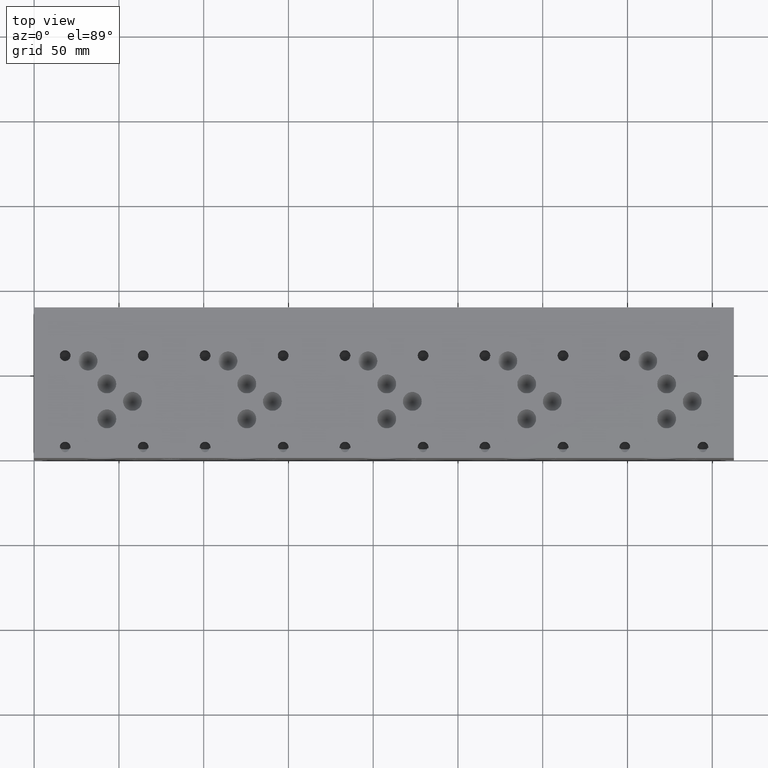
[diagram: clean part render]
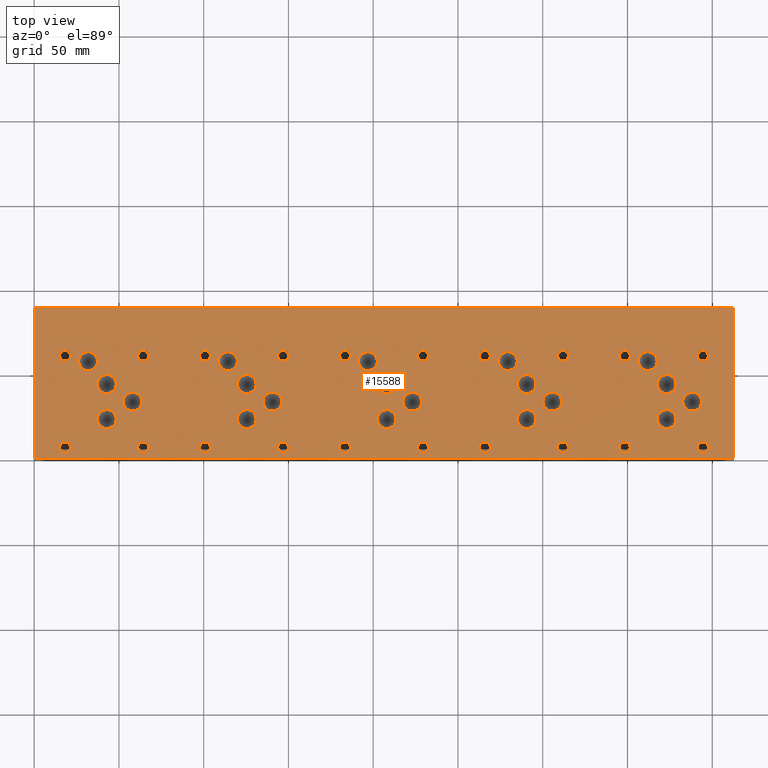
[diagram: same view with one face highlighted and labeled with its STEP entity id]
A machine part, top view. The second image highlights one B-rep face of the part: STEP entity #15588.
In plain terms, the highlighted planar face has unit normal (0, 0, 1).
Its self-contained STEP definition (entity closure, byte-faithful):
#309=CIRCLE('',#16221,3.175);
#310=CIRCLE('',#16222,3.175);
#316=CIRCLE('',#16232,3.175);
#317=CIRCLE('',#16233,3.175);
#323=CIRCLE('',#16243,3.175);
#324=CIRCLE('',#16244,3.175);
#330=CIRCLE('',#16254,3.175);
#331=CIRCLE('',#16255,3.175);
#337=CIRCLE('',#16265,3.175);
#338=CIRCLE('',#16266,3.175);
#344=CIRCLE('',#16276,3.175);
#345=CIRCLE('',#16277,3.175);
#351=CIRCLE('',#16287,3.175);
#352=CIRCLE('',#16288,3.175);
#358=CIRCLE('',#16298,3.175);
#359=CIRCLE('',#16299,3.175);
#365=CIRCLE('',#16309,3.175);
#366=CIRCLE('',#16310,3.175);
#372=CIRCLE('',#16320,3.175);
#373=CIRCLE('',#16321,3.175);
#379=CIRCLE('',#16331,3.175);
#380=CIRCLE('',#16332,3.175);
#386=CIRCLE('',#16342,3.175);
#387=CIRCLE('',#16343,3.175);
#393=CIRCLE('',#16353,3.175);
#394=CIRCLE('',#16354,3.175);
#400=CIRCLE('',#16364,3.175);
#401=CIRCLE('',#16365,3.175);
#407=CIRCLE('',#16375,3.175);
#408=CIRCLE('',#16376,3.175);
#414=CIRCLE('',#16386,3.175);
#415=CIRCLE('',#16387,3.175);
#418=CIRCLE('',#16393,5.5626);
#419=CIRCLE('',#16394,5.5626);
#422=CIRCLE('',#16399,5.5626);
#423=CIRCLE('',#16400,5.5626);
#426=CIRCLE('',#16405,5.5626);
#427=CIRCLE('',#16406,5.5626);
#430=CIRCLE('',#16411,5.5626);
#431=CIRCLE('',#16412,5.5626);
#434=CIRCLE('',#16417,5.5626);
#435=CIRCLE('',#16418,5.5626);
#438=CIRCLE('',#16423,5.5626);
#439=CIRCLE('',#16424,5.5626);
#442=CIRCLE('',#16429,5.5626);
#443=CIRCLE('',#16430,5.5626);
#446=CIRCLE('',#16435,5.5626);
#447=CIRCLE('',#16436,5.5626);
#450=CIRCLE('',#16441,5.5626);
#451=CIRCLE('',#16442,5.5626);
#454=CIRCLE('',#16447,5.5626);
#455=CIRCLE('',#16448,5.5626);
#458=CIRCLE('',#16453,5.5626);
#459=CIRCLE('',#16454,5.5626);
#462=CIRCLE('',#16459,5.5626);
#463=CIRCLE('',#16460,5.5626);
#466=CIRCLE('',#16465,5.5626);
#467=CIRCLE('',#16466,5.5626);
#470=CIRCLE('',#16471,5.5626);
#471=CIRCLE('',#16472,5.5626);
#474=CIRCLE('',#16477,5.5626);
#475=CIRCLE('',#16478,5.5626);
#478=CIRCLE('',#16483,5.5626);
#479=CIRCLE('',#16484,5.5626);
#482=CIRCLE('',#16489,5.5626);
#483=CIRCLE('',#16490,5.5626);
#486=CIRCLE('',#16495,5.5626);
#487=CIRCLE('',#16496,5.5626);
#490=CIRCLE('',#16501,5.5626);
#491=CIRCLE('',#16502,5.5626);
#494=CIRCLE('',#16507,5.5626);
#495=CIRCLE('',#16508,5.5626);
#501=CIRCLE('',#16517,3.175);
#502=CIRCLE('',#16518,3.175);
#508=CIRCLE('',#16528,3.175);
#509=CIRCLE('',#16529,3.175);
#515=CIRCLE('',#16539,3.175);
#516=CIRCLE('',#16540,3.175);
#522=CIRCLE('',#16550,3.175);
#523=CIRCLE('',#16551,3.175);
#642=FACE_BOUND('',#3008,.T.);
#643=FACE_BOUND('',#3009,.T.);
#644=FACE_BOUND('',#3010,.T.);
#645=FACE_BOUND('',#3011,.T.);
#646=FACE_BOUND('',#3012,.T.);
#647=FACE_BOUND('',#3013,.T.);
#648=FACE_BOUND('',#3014,.T.);
#649=FACE_BOUND('',#3015,.T.);
#650=FACE_BOUND('',#3016,.T.);
#651=FACE_BOUND('',#3017,.T.);
#652=FACE_BOUND('',#3018,.T.);
#653=FACE_BOUND('',#3019,.T.);
#654=FACE_BOUND('',#3020,.T.);
#655=FACE_BOUND('',#3021,.T.);
#656=FACE_BOUND('',#3022,.T.);
#657=FACE_BOUND('',#3023,.T.);
#658=FACE_BOUND('',#3024,.T.);
#659=FACE_BOUND('',#3025,.T.);
#660=FACE_BOUND('',#3026,.T.);
#661=FACE_BOUND('',#3027,.T.);
#662=FACE_BOUND('',#3028,.T.);
#663=FACE_BOUND('',#3029,.T.);
#664=FACE_BOUND('',#3030,.T.);
#665=FACE_BOUND('',#3031,.T.);
#666=FACE_BOUND('',#3032,.T.);
#667=FACE_BOUND('',#3033,.T.);
#668=FACE_BOUND('',#3034,.T.);
#669=FACE_BOUND('',#3035,.T.);
#670=FACE_BOUND('',#3036,.T.);
#671=FACE_BOUND('',#3037,.T.);
#672=FACE_BOUND('',#3038,.T.);
#673=FACE_BOUND('',#3039,.T.);
#674=FACE_BOUND('',#3040,.T.);
#675=FACE_BOUND('',#3041,.T.);
#676=FACE_BOUND('',#3042,.T.);
#677=FACE_BOUND('',#3043,.T.);
#678=FACE_BOUND('',#3044,.T.);
#679=FACE_BOUND('',#3045,.T.);
#680=FACE_BOUND('',#3046,.T.);
#681=FACE_BOUND('',#3047,.T.);
#2086=FACE_OUTER_BOUND('',#3007,.T.);
#3007=EDGE_LOOP('',(#13678,#13679,#13680,#13681));
#3008=EDGE_LOOP('',(#13682,#13683));
#3009=EDGE_LOOP('',(#13684,#13685));
#3010=EDGE_LOOP('',(#13686,#13687));
#3011=EDGE_LOOP('',(#13688,#13689));
#3012=EDGE_LOOP('',(#13690,#13691));
#3013=EDGE_LOOP('',(#13692,#13693));
#3014=EDGE_LOOP('',(#13694,#13695));
#3015=EDGE_LOOP('',(#13696,#13697));
#3016=EDGE_LOOP('',(#13698,#13699));
#3017=EDGE_LOOP('',(#13700,#13701));
#3018=EDGE_LOOP('',(#13702,#13703));
#3019=EDGE_LOOP('',(#13704,#13705));
#3020=EDGE_LOOP('',(#13706,#13707));
#3021=EDGE_LOOP('',(#13708,#13709));
#3022=EDGE_LOOP('',(#13710,#13711));
#3023=EDGE_LOOP('',(#13712,#13713));
#3024=EDGE_LOOP('',(#13714,#13715));
#3025=EDGE_LOOP('',(#13716,#13717));
#3026=EDGE_LOOP('',(#13718,#13719));
#3027=EDGE_LOOP('',(#13720,#13721));
#3028=EDGE_LOOP('',(#13722,#13723));
#3029=EDGE_LOOP('',(#13724,#13725));
#3030=EDGE_LOOP('',(#13726,#13727));
#3031=EDGE_LOOP('',(#13728,#13729));
#3032=EDGE_LOOP('',(#13730,#13731));
#3033=EDGE_LOOP('',(#13732,#13733));
#3034=EDGE_LOOP('',(#13734,#13735));
#3035=EDGE_LOOP('',(#13736,#13737));
#3036=EDGE_LOOP('',(#13738,#13739));
#3037=EDGE_LOOP('',(#13740,#13741));
#3038=EDGE_LOOP('',(#13742,#13743));
#3039=EDGE_LOOP('',(#13744,#13745));
#3040=EDGE_LOOP('',(#13746,#13747));
#3041=EDGE_LOOP('',(#13748,#13749));
#3042=EDGE_LOOP('',(#13750,#13751));
#3043=EDGE_LOOP('',(#13752,#13753));
#3044=EDGE_LOOP('',(#13754,#13755));
#3045=EDGE_LOOP('',(#13756,#13757));
#3046=EDGE_LOOP('',(#13758,#13759));
#3047=EDGE_LOOP('',(#13760,#13761));
#3107=LINE('',#20119,#4497);
#3167=LINE('',#20394,#4557);
#3449=LINE('',#22562,#4839);
#4438=LINE('',#26920,#5828);
#4497=VECTOR('',#16657,10.);
#4557=VECTOR('',#16771,10.);
#4839=VECTOR('',#17213,10.);
#5828=VECTOR('',#19852,10.);
#5879=VERTEX_POINT('',#20116);
#5880=VERTEX_POINT('',#20118);
#5939=VERTEX_POINT('',#20391);
#5940=VERTEX_POINT('',#20393);
#7077=VERTEX_POINT('',#26232);
#7078=VERTEX_POINT('',#26233);
#7085=VERTEX_POINT('',#26254);
#7086=VERTEX_POINT('',#26255);
#7093=VERTEX_POINT('',#26276);
#7094=VERTEX_POINT('',#26277);
#7101=VERTEX_POINT('',#26298);
#7102=VERTEX_POINT('',#26299);
#7109=VERTEX_POINT('',#26320);
#7110=VERTEX_POINT('',#26321);
#7117=VERTEX_POINT('',#26342);
#7118=VERTEX_POINT('',#26343);
#7125=VERTEX_POINT('',#26364);
#7126=VERTEX_POINT('',#26365);
#7133=VERTEX_POINT('',#26386);
#7134=VERTEX_POINT('',#26387);
#7141=VERTEX_POINT('',#26408);
#7142=VERTEX_POINT('',#26409);
#7149=VERTEX_POINT('',#26430);
#7150=VERTEX_POINT('',#26431);
#7157=VERTEX_POINT('',#26452);
#7158=VERTEX_POINT('',#26453);
#7165=VERTEX_POINT('',#26474);
#7166=VERTEX_POINT('',#26475);
#7173=VERTEX_POINT('',#26496);
#7174=VERTEX_POINT('',#26497);
#7181=VERTEX_POINT('',#26518);
#7182=VERTEX_POINT('',#26519);
#7189=VERTEX_POINT('',#26540);
#7190=VERTEX_POINT('',#26541);
#7197=VERTEX_POINT('',#26562);
#7198=VERTEX_POINT('',#26563);
#7202=VERTEX_POINT('',#26577);
#7203=VERTEX_POINT('',#26578);
#7207=VERTEX_POINT('',#26590);
#7208=VERTEX_POINT('',#26591);
#7212=VERTEX_POINT('',#26603);
#7213=VERTEX_POINT('',#26604);
#7217=VERTEX_POINT('',#26616);
#7218=VERTEX_POINT('',#26617);
#7222=VERTEX_POINT('',#26629);
#7223=VERTEX_POINT('',#26630);
#7227=VERTEX_POINT('',#26642);
#7228=VERTEX_POINT('',#26643);
#7232=VERTEX_POINT('',#26655);
#7233=VERTEX_POINT('',#26656);
#7237=VERTEX_POINT('',#26668);
#7238=VERTEX_POINT('',#26669);
#7242=VERTEX_POINT('',#26681);
#7243=VERTEX_POINT('',#26682);
#7247=VERTEX_POINT('',#26694);
#7248=VERTEX_POINT('',#26695);
#7252=VERTEX_POINT('',#26707);
#7253=VERTEX_POINT('',#26708);
#7257=VERTEX_POINT('',#26720);
#7258=VERTEX_POINT('',#26721);
#7262=VERTEX_POINT('',#26733);
#7263=VERTEX_POINT('',#26734);
#7267=VERTEX_POINT('',#26746);
#7268=VERTEX_POINT('',#26747);
#7272=VERTEX_POINT('',#26759);
#7273=VERTEX_POINT('',#26760);
#7277=VERTEX_POINT('',#26772);
#7278=VERTEX_POINT('',#26773);
#7282=VERTEX_POINT('',#26785);
#7283=VERTEX_POINT('',#26786);
#7287=VERTEX_POINT('',#26798);
#7288=VERTEX_POINT('',#26799);
#7292=VERTEX_POINT('',#26811);
#7293=VERTEX_POINT('',#26812);
#7297=VERTEX_POINT('',#26824);
#7298=VERTEX_POINT('',#26825);
#7305=VERTEX_POINT('',#26844);
#7306=VERTEX_POINT('',#26845);
#7313=VERTEX_POINT('',#26866);
#7314=VERTEX_POINT('',#26867);
#7321=VERTEX_POINT('',#26888);
#7322=VERTEX_POINT('',#26889);
#7329=VERTEX_POINT('',#26910);
#7330=VERTEX_POINT('',#26911);
#7405=EDGE_CURVE('',#5880,#5879,#3107,.T.);
#7489=EDGE_CURVE('',#5940,#5939,#3167,.T.);
#7965=EDGE_CURVE('',#5939,#5880,#3449,.T.);
#9160=EDGE_CURVE('',#7077,#7078,#309,.T.);
#9161=EDGE_CURVE('',#7078,#7077,#310,.T.);
#9170=EDGE_CURVE('',#7085,#7086,#316,.T.);
#9171=EDGE_CURVE('',#7086,#7085,#317,.T.);
#9180=EDGE_CURVE('',#7093,#7094,#323,.T.);
#9181=EDGE_CURVE('',#7094,#7093,#324,.T.);
#9190=EDGE_CURVE('',#7101,#7102,#330,.T.);
#9191=EDGE_CURVE('',#7102,#7101,#331,.T.);
#9200=EDGE_CURVE('',#7109,#7110,#337,.T.);
#9201=EDGE_CURVE('',#7110,#7109,#338,.T.);
#9210=EDGE_CURVE('',#7117,#7118,#344,.T.);
#9211=EDGE_CURVE('',#7118,#7117,#345,.T.);
#9220=EDGE_CURVE('',#7125,#7126,#351,.T.);
#9221=EDGE_CURVE('',#7126,#7125,#352,.T.);
#9230=EDGE_CURVE('',#7133,#7134,#358,.T.);
#9231=EDGE_CURVE('',#7134,#7133,#359,.T.);
#9240=EDGE_CURVE('',#7141,#7142,#365,.T.);
#9241=EDGE_CURVE('',#7142,#7141,#366,.T.);
#9250=EDGE_CURVE('',#7149,#7150,#372,.T.);
#9251=EDGE_CURVE('',#7150,#7149,#373,.T.);
#9260=EDGE_CURVE('',#7157,#7158,#379,.T.);
#9261=EDGE_CURVE('',#7158,#7157,#380,.T.);
#9270=EDGE_CURVE('',#7165,#7166,#386,.T.);
#9271=EDGE_CURVE('',#7166,#7165,#387,.T.);
#9280=EDGE_CURVE('',#7173,#7174,#393,.T.);
#9281=EDGE_CURVE('',#7174,#7173,#394,.T.);
#9290=EDGE_CURVE('',#7181,#7182,#400,.T.);
#9291=EDGE_CURVE('',#7182,#7181,#401,.T.);
#9300=EDGE_CURVE('',#7189,#7190,#407,.T.);
#9301=EDGE_CURVE('',#7190,#7189,#408,.T.);
#9310=EDGE_CURVE('',#7197,#7198,#414,.T.);
#9311=EDGE_CURVE('',#7198,#7197,#415,.T.);
#9317=EDGE_CURVE('',#7202,#7203,#418,.T.);
#9318=EDGE_CURVE('',#7203,#7202,#419,.T.);
#9323=EDGE_CURVE('',#7207,#7208,#422,.T.);
#9324=EDGE_CURVE('',#7208,#7207,#423,.T.);
#9329=EDGE_CURVE('',#7212,#7213,#426,.T.);
#9330=EDGE_CURVE('',#7213,#7212,#427,.T.);
#9335=EDGE_CURVE('',#7217,#7218,#430,.T.);
#9336=EDGE_CURVE('',#7218,#7217,#431,.T.);
#9341=EDGE_CURVE('',#7222,#7223,#434,.T.);
#9342=EDGE_CURVE('',#7223,#7222,#435,.T.);
#9347=EDGE_CURVE('',#7227,#7228,#438,.T.);
#9348=EDGE_CURVE('',#7228,#7227,#439,.T.);
#9353=EDGE_CURVE('',#7232,#7233,#442,.T.);
#9354=EDGE_CURVE('',#7233,#7232,#443,.T.);
#9359=EDGE_CURVE('',#7237,#7238,#446,.T.);
#9360=EDGE_CURVE('',#7238,#7237,#447,.T.);
#9365=EDGE_CURVE('',#7242,#7243,#450,.T.);
#9366=EDGE_CURVE('',#7243,#7242,#451,.T.);
#9371=EDGE_CURVE('',#7247,#7248,#454,.T.);
#9372=EDGE_CURVE('',#7248,#7247,#455,.T.);
#9377=EDGE_CURVE('',#7252,#7253,#458,.T.);
#9378=EDGE_CURVE('',#7253,#7252,#459,.T.);
#9383=EDGE_CURVE('',#7257,#7258,#462,.T.);
#9384=EDGE_CURVE('',#7258,#7257,#463,.T.);
#9389=EDGE_CURVE('',#7262,#7263,#466,.T.);
#9390=EDGE_CURVE('',#7263,#7262,#467,.T.);
#9395=EDGE_CURVE('',#7267,#7268,#470,.T.);
#9396=EDGE_CURVE('',#7268,#7267,#471,.T.);
#9401=EDGE_CURVE('',#7272,#7273,#474,.T.);
#9402=EDGE_CURVE('',#7273,#7272,#475,.T.);
#9407=EDGE_CURVE('',#7277,#7278,#478,.T.);
#9408=EDGE_CURVE('',#7278,#7277,#479,.T.);
#9413=EDGE_CURVE('',#7282,#7283,#482,.T.);
#9414=EDGE_CURVE('',#7283,#7282,#483,.T.);
#9419=EDGE_CURVE('',#7287,#7288,#486,.T.);
#9420=EDGE_CURVE('',#7288,#7287,#487,.T.);
#9425=EDGE_CURVE('',#7292,#7293,#490,.T.);
#9426=EDGE_CURVE('',#7293,#7292,#491,.T.);
#9431=EDGE_CURVE('',#7297,#7298,#494,.T.);
#9432=EDGE_CURVE('',#7298,#7297,#495,.T.);
#9440=EDGE_CURVE('',#7305,#7306,#501,.T.);
#9441=EDGE_CURVE('',#7306,#7305,#502,.T.);
#9450=EDGE_CURVE('',#7313,#7314,#508,.T.);
#9451=EDGE_CURVE('',#7314,#7313,#509,.T.);
#9460=EDGE_CURVE('',#7321,#7322,#515,.T.);
#9461=EDGE_CURVE('',#7322,#7321,#516,.T.);
#9470=EDGE_CURVE('',#7329,#7330,#522,.T.);
#9471=EDGE_CURVE('',#7330,#7329,#523,.T.);
#9475=EDGE_CURVE('',#5879,#5940,#4438,.T.);
#13678=ORIENTED_EDGE('',*,*,#7965,.T.);
#13679=ORIENTED_EDGE('',*,*,#7405,.T.);
#13680=ORIENTED_EDGE('',*,*,#9475,.T.);
#13681=ORIENTED_EDGE('',*,*,#7489,.T.);
#13682=ORIENTED_EDGE('',*,*,#9160,.T.);
#13683=ORIENTED_EDGE('',*,*,#9161,.T.);
#13684=ORIENTED_EDGE('',*,*,#9170,.T.);
#13685=ORIENTED_EDGE('',*,*,#9171,.T.);
#13686=ORIENTED_EDGE('',*,*,#9180,.T.);
#13687=ORIENTED_EDGE('',*,*,#9181,.T.);
#13688=ORIENTED_EDGE('',*,*,#9190,.T.);
#13689=ORIENTED_EDGE('',*,*,#9191,.T.);
#13690=ORIENTED_EDGE('',*,*,#9200,.T.);
#13691=ORIENTED_EDGE('',*,*,#9201,.T.);
#13692=ORIENTED_EDGE('',*,*,#9210,.T.);
#13693=ORIENTED_EDGE('',*,*,#9211,.T.);
#13694=ORIENTED_EDGE('',*,*,#9220,.T.);
#13695=ORIENTED_EDGE('',*,*,#9221,.T.);
#13696=ORIENTED_EDGE('',*,*,#9230,.T.);
#13697=ORIENTED_EDGE('',*,*,#9231,.T.);
#13698=ORIENTED_EDGE('',*,*,#9240,.T.);
#13699=ORIENTED_EDGE('',*,*,#9241,.T.);
#13700=ORIENTED_EDGE('',*,*,#9250,.T.);
#13701=ORIENTED_EDGE('',*,*,#9251,.T.);
#13702=ORIENTED_EDGE('',*,*,#9260,.T.);
#13703=ORIENTED_EDGE('',*,*,#9261,.T.);
#13704=ORIENTED_EDGE('',*,*,#9270,.T.);
#13705=ORIENTED_EDGE('',*,*,#9271,.T.);
#13706=ORIENTED_EDGE('',*,*,#9280,.T.);
#13707=ORIENTED_EDGE('',*,*,#9281,.T.);
#13708=ORIENTED_EDGE('',*,*,#9290,.T.);
#13709=ORIENTED_EDGE('',*,*,#9291,.T.);
#13710=ORIENTED_EDGE('',*,*,#9300,.T.);
#13711=ORIENTED_EDGE('',*,*,#9301,.T.);
#13712=ORIENTED_EDGE('',*,*,#9310,.T.);
#13713=ORIENTED_EDGE('',*,*,#9311,.T.);
#13714=ORIENTED_EDGE('',*,*,#9317,.T.);
#13715=ORIENTED_EDGE('',*,*,#9318,.T.);
#13716=ORIENTED_EDGE('',*,*,#9323,.T.);
#13717=ORIENTED_EDGE('',*,*,#9324,.T.);
#13718=ORIENTED_EDGE('',*,*,#9329,.T.);
#13719=ORIENTED_EDGE('',*,*,#9330,.T.);
#13720=ORIENTED_EDGE('',*,*,#9335,.T.);
#13721=ORIENTED_EDGE('',*,*,#9336,.T.);
#13722=ORIENTED_EDGE('',*,*,#9341,.T.);
#13723=ORIENTED_EDGE('',*,*,#9342,.T.);
#13724=ORIENTED_EDGE('',*,*,#9347,.T.);
#13725=ORIENTED_EDGE('',*,*,#9348,.T.);
#13726=ORIENTED_EDGE('',*,*,#9353,.T.);
#13727=ORIENTED_EDGE('',*,*,#9354,.T.);
#13728=ORIENTED_EDGE('',*,*,#9359,.T.);
#13729=ORIENTED_EDGE('',*,*,#9360,.T.);
#13730=ORIENTED_EDGE('',*,*,#9365,.T.);
#13731=ORIENTED_EDGE('',*,*,#9366,.T.);
#13732=ORIENTED_EDGE('',*,*,#9371,.T.);
#13733=ORIENTED_EDGE('',*,*,#9372,.T.);
#13734=ORIENTED_EDGE('',*,*,#9377,.T.);
#13735=ORIENTED_EDGE('',*,*,#9378,.T.);
#13736=ORIENTED_EDGE('',*,*,#9383,.T.);
#13737=ORIENTED_EDGE('',*,*,#9384,.T.);
#13738=ORIENTED_EDGE('',*,*,#9389,.T.);
#13739=ORIENTED_EDGE('',*,*,#9390,.T.);
#13740=ORIENTED_EDGE('',*,*,#9395,.T.);
#13741=ORIENTED_EDGE('',*,*,#9396,.T.);
#13742=ORIENTED_EDGE('',*,*,#9401,.T.);
#13743=ORIENTED_EDGE('',*,*,#9402,.T.);
#13744=ORIENTED_EDGE('',*,*,#9407,.T.);
#13745=ORIENTED_EDGE('',*,*,#9408,.T.);
#13746=ORIENTED_EDGE('',*,*,#9413,.T.);
#13747=ORIENTED_EDGE('',*,*,#9414,.T.);
#13748=ORIENTED_EDGE('',*,*,#9419,.T.);
#13749=ORIENTED_EDGE('',*,*,#9420,.T.);
#13750=ORIENTED_EDGE('',*,*,#9425,.T.);
#13751=ORIENTED_EDGE('',*,*,#9426,.T.);
#13752=ORIENTED_EDGE('',*,*,#9431,.T.);
#13753=ORIENTED_EDGE('',*,*,#9432,.T.);
#13754=ORIENTED_EDGE('',*,*,#9440,.T.);
#13755=ORIENTED_EDGE('',*,*,#9441,.T.);
#13756=ORIENTED_EDGE('',*,*,#9450,.T.);
#13757=ORIENTED_EDGE('',*,*,#9451,.T.);
#13758=ORIENTED_EDGE('',*,*,#9460,.T.);
#13759=ORIENTED_EDGE('',*,*,#9461,.T.);
#13760=ORIENTED_EDGE('',*,*,#9470,.T.);
#13761=ORIENTED_EDGE('',*,*,#9471,.T.);
#14209=PLANE('',#16557);
#15588=ADVANCED_FACE('',(#2086,#642,#643,#644,#645,#646,#647,#648,#649,
#650,#651,#652,#653,#654,#655,#656,#657,#658,#659,#660,#661,#662,#663,#664,
#665,#666,#667,#668,#669,#670,#671,#672,#673,#674,#675,#676,#677,#678,#679,
#680,#681),#14209,.T.);
#16221=AXIS2_PLACEMENT_3D('',#26234,#19084,#19085);
#16222=AXIS2_PLACEMENT_3D('',#26235,#19086,#19087);
#16232=AXIS2_PLACEMENT_3D('',#26256,#19109,#19110);
#16233=AXIS2_PLACEMENT_3D('',#26257,#19111,#19112);
#16243=AXIS2_PLACEMENT_3D('',#26278,#19134,#19135);
#16244=AXIS2_PLACEMENT_3D('',#26279,#19136,#19137);
#16254=AXIS2_PLACEMENT_3D('',#26300,#19159,#19160);
#16255=AXIS2_PLACEMENT_3D('',#26301,#19161,#19162);
#16265=AXIS2_PLACEMENT_3D('',#26322,#19184,#19185);
#16266=AXIS2_PLACEMENT_3D('',#26323,#19186,#19187);
#16276=AXIS2_PLACEMENT_3D('',#26344,#19209,#19210);
#16277=AXIS2_PLACEMENT_3D('',#26345,#19211,#19212);
#16287=AXIS2_PLACEMENT_3D('',#26366,#19234,#19235);
#16288=AXIS2_PLACEMENT_3D('',#26367,#19236,#19237);
#16298=AXIS2_PLACEMENT_3D('',#26388,#19259,#19260);
#16299=AXIS2_PLACEMENT_3D('',#26389,#19261,#19262);
#16309=AXIS2_PLACEMENT_3D('',#26410,#19284,#19285);
#16310=AXIS2_PLACEMENT_3D('',#26411,#19286,#19287);
#16320=AXIS2_PLACEMENT_3D('',#26432,#19309,#19310);
#16321=AXIS2_PLACEMENT_3D('',#26433,#19311,#19312);
#16331=AXIS2_PLACEMENT_3D('',#26454,#19334,#19335);
#16332=AXIS2_PLACEMENT_3D('',#26455,#19336,#19337);
#16342=AXIS2_PLACEMENT_3D('',#26476,#19359,#19360);
#16343=AXIS2_PLACEMENT_3D('',#26477,#19361,#19362);
#16353=AXIS2_PLACEMENT_3D('',#26498,#19384,#19385);
#16354=AXIS2_PLACEMENT_3D('',#26499,#19386,#19387);
#16364=AXIS2_PLACEMENT_3D('',#26520,#19409,#19410);
#16365=AXIS2_PLACEMENT_3D('',#26521,#19411,#19412);
#16375=AXIS2_PLACEMENT_3D('',#26542,#19434,#19435);
#16376=AXIS2_PLACEMENT_3D('',#26543,#19436,#19437);
#16386=AXIS2_PLACEMENT_3D('',#26564,#19459,#19460);
#16387=AXIS2_PLACEMENT_3D('',#26565,#19461,#19462);
#16393=AXIS2_PLACEMENT_3D('',#26579,#19476,#19477);
#16394=AXIS2_PLACEMENT_3D('',#26580,#19478,#19479);
#16399=AXIS2_PLACEMENT_3D('',#26592,#19490,#19491);
#16400=AXIS2_PLACEMENT_3D('',#26593,#19492,#19493);
#16405=AXIS2_PLACEMENT_3D('',#26605,#19504,#19505);
#16406=AXIS2_PLACEMENT_3D('',#26606,#19506,#19507);
#16411=AXIS2_PLACEMENT_3D('',#26618,#19518,#19519);
#16412=AXIS2_PLACEMENT_3D('',#26619,#19520,#19521);
#16417=AXIS2_PLACEMENT_3D('',#26631,#19532,#19533);
#16418=AXIS2_PLACEMENT_3D('',#26632,#19534,#19535);
#16423=AXIS2_PLACEMENT_3D('',#26644,#19546,#19547);
#16424=AXIS2_PLACEMENT_3D('',#26645,#19548,#19549);
#16429=AXIS2_PLACEMENT_3D('',#26657,#19560,#19561);
#16430=AXIS2_PLACEMENT_3D('',#26658,#19562,#19563);
#16435=AXIS2_PLACEMENT_3D('',#26670,#19574,#19575);
#16436=AXIS2_PLACEMENT_3D('',#26671,#19576,#19577);
#16441=AXIS2_PLACEMENT_3D('',#26683,#19588,#19589);
#16442=AXIS2_PLACEMENT_3D('',#26684,#19590,#19591);
#16447=AXIS2_PLACEMENT_3D('',#26696,#19602,#19603);
#16448=AXIS2_PLACEMENT_3D('',#26697,#19604,#19605);
#16453=AXIS2_PLACEMENT_3D('',#26709,#19616,#19617);
#16454=AXIS2_PLACEMENT_3D('',#26710,#19618,#19619);
#16459=AXIS2_PLACEMENT_3D('',#26722,#19630,#19631);
#16460=AXIS2_PLACEMENT_3D('',#26723,#19632,#19633);
#16465=AXIS2_PLACEMENT_3D('',#26735,#19644,#19645);
#16466=AXIS2_PLACEMENT_3D('',#26736,#19646,#19647);
#16471=AXIS2_PLACEMENT_3D('',#26748,#19658,#19659);
#16472=AXIS2_PLACEMENT_3D('',#26749,#19660,#19661);
#16477=AXIS2_PLACEMENT_3D('',#26761,#19672,#19673);
#16478=AXIS2_PLACEMENT_3D('',#26762,#19674,#19675);
#16483=AXIS2_PLACEMENT_3D('',#26774,#19686,#19687);
#16484=AXIS2_PLACEMENT_3D('',#26775,#19688,#19689);
#16489=AXIS2_PLACEMENT_3D('',#26787,#19700,#19701);
#16490=AXIS2_PLACEMENT_3D('',#26788,#19702,#19703);
#16495=AXIS2_PLACEMENT_3D('',#26800,#19714,#19715);
#16496=AXIS2_PLACEMENT_3D('',#26801,#19716,#19717);
#16501=AXIS2_PLACEMENT_3D('',#26813,#19728,#19729);
#16502=AXIS2_PLACEMENT_3D('',#26814,#19730,#19731);
#16507=AXIS2_PLACEMENT_3D('',#26826,#19742,#19743);
#16508=AXIS2_PLACEMENT_3D('',#26827,#19744,#19745);
#16517=AXIS2_PLACEMENT_3D('',#26846,#19764,#19765);
#16518=AXIS2_PLACEMENT_3D('',#26847,#19766,#19767);
#16528=AXIS2_PLACEMENT_3D('',#26868,#19789,#19790);
#16529=AXIS2_PLACEMENT_3D('',#26869,#19791,#19792);
#16539=AXIS2_PLACEMENT_3D('',#26890,#19814,#19815);
#16540=AXIS2_PLACEMENT_3D('',#26891,#19816,#19817);
#16550=AXIS2_PLACEMENT_3D('',#26912,#19839,#19840);
#16551=AXIS2_PLACEMENT_3D('',#26913,#19841,#19842);
#16557=AXIS2_PLACEMENT_3D('',#26923,#19857,#19858);
#16657=DIRECTION('',(0.,1.,0.));
#16771=DIRECTION('',(0.,-1.,0.));
#17213=DIRECTION('',(1.,0.,0.));
#19084=DIRECTION('center_axis',(0.,0.,-1.));
#19085=DIRECTION('ref_axis',(1.,0.,0.));
#19086=DIRECTION('center_axis',(0.,0.,-1.));
#19087=DIRECTION('ref_axis',(1.,0.,0.));
#19109=DIRECTION('center_axis',(0.,0.,-1.));
#19110=DIRECTION('ref_axis',(1.,0.,0.));
#19111=DIRECTION('center_axis',(0.,0.,-1.));
#19112=DIRECTION('ref_axis',(1.,0.,0.));
#19134=DIRECTION('center_axis',(0.,0.,-1.));
#19135=DIRECTION('ref_axis',(1.,0.,0.));
#19136=DIRECTION('center_axis',(0.,0.,-1.));
#19137=DIRECTION('ref_axis',(1.,0.,0.));
#19159=DIRECTION('center_axis',(0.,0.,-1.));
#19160=DIRECTION('ref_axis',(1.,0.,0.));
#19161=DIRECTION('center_axis',(0.,0.,-1.));
#19162=DIRECTION('ref_axis',(1.,0.,0.));
#19184=DIRECTION('center_axis',(0.,0.,-1.));
#19185=DIRECTION('ref_axis',(1.,0.,0.));
#19186=DIRECTION('center_axis',(0.,0.,-1.));
#19187=DIRECTION('ref_axis',(1.,0.,0.));
#19209=DIRECTION('center_axis',(0.,0.,-1.));
#19210=DIRECTION('ref_axis',(1.,0.,0.));
#19211=DIRECTION('center_axis',(0.,0.,-1.));
#19212=DIRECTION('ref_axis',(1.,0.,0.));
#19234=DIRECTION('center_axis',(0.,0.,-1.));
#19235=DIRECTION('ref_axis',(1.,0.,0.));
#19236=DIRECTION('center_axis',(0.,0.,-1.));
#19237=DIRECTION('ref_axis',(1.,0.,0.));
#19259=DIRECTION('center_axis',(0.,0.,-1.));
#19260=DIRECTION('ref_axis',(1.,0.,0.));
#19261=DIRECTION('center_axis',(0.,0.,-1.));
#19262=DIRECTION('ref_axis',(1.,0.,0.));
#19284=DIRECTION('center_axis',(0.,0.,-1.));
#19285=DIRECTION('ref_axis',(1.,0.,0.));
#19286=DIRECTION('center_axis',(0.,0.,-1.));
#19287=DIRECTION('ref_axis',(1.,0.,0.));
#19309=DIRECTION('center_axis',(0.,0.,-1.));
#19310=DIRECTION('ref_axis',(1.,0.,0.));
#19311=DIRECTION('center_axis',(0.,0.,-1.));
#19312=DIRECTION('ref_axis',(1.,0.,0.));
#19334=DIRECTION('center_axis',(0.,0.,-1.));
#19335=DIRECTION('ref_axis',(1.,0.,0.));
#19336=DIRECTION('center_axis',(0.,0.,-1.));
#19337=DIRECTION('ref_axis',(1.,0.,0.));
#19359=DIRECTION('center_axis',(0.,0.,-1.));
#19360=DIRECTION('ref_axis',(1.,0.,0.));
#19361=DIRECTION('center_axis',(0.,0.,-1.));
#19362=DIRECTION('ref_axis',(1.,0.,0.));
#19384=DIRECTION('center_axis',(0.,0.,-1.));
#19385=DIRECTION('ref_axis',(1.,0.,0.));
#19386=DIRECTION('center_axis',(0.,0.,-1.));
#19387=DIRECTION('ref_axis',(1.,0.,0.));
#19409=DIRECTION('center_axis',(0.,0.,-1.));
#19410=DIRECTION('ref_axis',(1.,0.,0.));
#19411=DIRECTION('center_axis',(0.,0.,-1.));
#19412=DIRECTION('ref_axis',(1.,0.,0.));
#19434=DIRECTION('center_axis',(0.,0.,-1.));
#19435=DIRECTION('ref_axis',(1.,0.,0.));
#19436=DIRECTION('center_axis',(0.,0.,-1.));
#19437=DIRECTION('ref_axis',(1.,0.,0.));
#19459=DIRECTION('center_axis',(0.,0.,-1.));
#19460=DIRECTION('ref_axis',(1.,0.,0.));
#19461=DIRECTION('center_axis',(0.,0.,-1.));
#19462=DIRECTION('ref_axis',(1.,0.,0.));
#19476=DIRECTION('center_axis',(0.,0.,-1.));
#19477=DIRECTION('ref_axis',(1.,0.,0.));
#19478=DIRECTION('center_axis',(0.,0.,-1.));
#19479=DIRECTION('ref_axis',(1.,0.,0.));
#19490=DIRECTION('center_axis',(0.,0.,-1.));
#19491=DIRECTION('ref_axis',(1.,0.,0.));
#19492=DIRECTION('center_axis',(0.,0.,-1.));
#19493=DIRECTION('ref_axis',(1.,0.,0.));
#19504=DIRECTION('center_axis',(0.,0.,-1.));
#19505=DIRECTION('ref_axis',(1.,0.,0.));
#19506=DIRECTION('center_axis',(0.,0.,-1.));
#19507=DIRECTION('ref_axis',(1.,0.,0.));
#19518=DIRECTION('center_axis',(0.,0.,-1.));
#19519=DIRECTION('ref_axis',(1.,0.,0.));
#19520=DIRECTION('center_axis',(0.,0.,-1.));
#19521=DIRECTION('ref_axis',(1.,0.,0.));
#19532=DIRECTION('center_axis',(0.,0.,-1.));
#19533=DIRECTION('ref_axis',(1.,0.,0.));
#19534=DIRECTION('center_axis',(0.,0.,-1.));
#19535=DIRECTION('ref_axis',(1.,0.,0.));
#19546=DIRECTION('center_axis',(0.,0.,-1.));
#19547=DIRECTION('ref_axis',(1.,0.,0.));
#19548=DIRECTION('center_axis',(0.,0.,-1.));
#19549=DIRECTION('ref_axis',(1.,0.,0.));
#19560=DIRECTION('center_axis',(0.,0.,-1.));
#19561=DIRECTION('ref_axis',(1.,0.,0.));
#19562=DIRECTION('center_axis',(0.,0.,-1.));
#19563=DIRECTION('ref_axis',(1.,0.,0.));
#19574=DIRECTION('center_axis',(0.,0.,-1.));
#19575=DIRECTION('ref_axis',(1.,0.,0.));
#19576=DIRECTION('center_axis',(0.,0.,-1.));
#19577=DIRECTION('ref_axis',(1.,0.,0.));
#19588=DIRECTION('center_axis',(0.,0.,-1.));
#19589=DIRECTION('ref_axis',(1.,0.,0.));
#19590=DIRECTION('center_axis',(0.,0.,-1.));
#19591=DIRECTION('ref_axis',(1.,0.,0.));
#19602=DIRECTION('center_axis',(0.,0.,-1.));
#19603=DIRECTION('ref_axis',(1.,0.,0.));
#19604=DIRECTION('center_axis',(0.,0.,-1.));
#19605=DIRECTION('ref_axis',(1.,0.,0.));
#19616=DIRECTION('center_axis',(0.,0.,-1.));
#19617=DIRECTION('ref_axis',(1.,0.,0.));
#19618=DIRECTION('center_axis',(0.,0.,-1.));
#19619=DIRECTION('ref_axis',(1.,0.,0.));
#19630=DIRECTION('center_axis',(0.,0.,-1.));
#19631=DIRECTION('ref_axis',(1.,0.,0.));
#19632=DIRECTION('center_axis',(0.,0.,-1.));
#19633=DIRECTION('ref_axis',(1.,0.,0.));
#19644=DIRECTION('center_axis',(0.,0.,-1.));
#19645=DIRECTION('ref_axis',(1.,0.,0.));
#19646=DIRECTION('center_axis',(0.,0.,-1.));
#19647=DIRECTION('ref_axis',(1.,0.,0.));
#19658=DIRECTION('center_axis',(0.,0.,-1.));
#19659=DIRECTION('ref_axis',(1.,0.,0.));
#19660=DIRECTION('center_axis',(0.,0.,-1.));
#19661=DIRECTION('ref_axis',(1.,0.,0.));
#19672=DIRECTION('center_axis',(0.,0.,-1.));
#19673=DIRECTION('ref_axis',(1.,0.,0.));
#19674=DIRECTION('center_axis',(0.,0.,-1.));
#19675=DIRECTION('ref_axis',(1.,0.,0.));
#19686=DIRECTION('center_axis',(0.,0.,-1.));
#19687=DIRECTION('ref_axis',(1.,0.,0.));
#19688=DIRECTION('center_axis',(0.,0.,-1.));
#19689=DIRECTION('ref_axis',(1.,0.,0.));
#19700=DIRECTION('center_axis',(0.,0.,-1.));
#19701=DIRECTION('ref_axis',(1.,0.,0.));
#19702=DIRECTION('center_axis',(0.,0.,-1.));
#19703=DIRECTION('ref_axis',(1.,0.,0.));
#19714=DIRECTION('center_axis',(0.,0.,-1.));
#19715=DIRECTION('ref_axis',(1.,0.,0.));
#19716=DIRECTION('center_axis',(0.,0.,-1.));
#19717=DIRECTION('ref_axis',(1.,0.,0.));
#19728=DIRECTION('center_axis',(0.,0.,-1.));
#19729=DIRECTION('ref_axis',(1.,0.,0.));
#19730=DIRECTION('center_axis',(0.,0.,-1.));
#19731=DIRECTION('ref_axis',(1.,0.,0.));
#19742=DIRECTION('center_axis',(0.,0.,-1.));
#19743=DIRECTION('ref_axis',(1.,0.,0.));
#19744=DIRECTION('center_axis',(0.,0.,-1.));
#19745=DIRECTION('ref_axis',(1.,0.,0.));
#19764=DIRECTION('center_axis',(0.,0.,-1.));
#19765=DIRECTION('ref_axis',(1.,0.,0.));
#19766=DIRECTION('center_axis',(0.,0.,-1.));
#19767=DIRECTION('ref_axis',(1.,0.,0.));
#19789=DIRECTION('center_axis',(0.,0.,-1.));
#19790=DIRECTION('ref_axis',(1.,0.,0.));
#19791=DIRECTION('center_axis',(0.,0.,-1.));
#19792=DIRECTION('ref_axis',(1.,0.,0.));
#19814=DIRECTION('center_axis',(0.,0.,-1.));
#19815=DIRECTION('ref_axis',(1.,0.,0.));
#19816=DIRECTION('center_axis',(0.,0.,-1.));
#19817=DIRECTION('ref_axis',(1.,0.,0.));
#19839=DIRECTION('center_axis',(0.,0.,-1.));
#19840=DIRECTION('ref_axis',(1.,0.,0.));
#19841=DIRECTION('center_axis',(0.,0.,-1.));
#19842=DIRECTION('ref_axis',(1.,0.,0.));
#19852=DIRECTION('',(-1.,0.,0.));
#19857=DIRECTION('center_axis',(0.,0.,1.));
#19858=DIRECTION('ref_axis',(1.,0.,0.));
#20116=CARTESIAN_POINT('',(412.75,88.9,88.9));
#20118=CARTESIAN_POINT('',(412.75,0.,88.9));
#20119=CARTESIAN_POINT('',(412.75,0.,88.9));
#20391=CARTESIAN_POINT('',(0.,0.,88.9));
#20393=CARTESIAN_POINT('',(0.,88.9,88.9));
#20394=CARTESIAN_POINT('',(0.,88.9,88.9));
#22562=CARTESIAN_POINT('',(0.,0.,88.9));
#26232=CARTESIAN_POINT('',(397.6624,6.35,88.9));
#26233=CARTESIAN_POINT('',(391.3124,6.35,88.9));
#26234=CARTESIAN_POINT('Origin',(394.4874,6.35,88.9));
#26235=CARTESIAN_POINT('Origin',(394.4874,6.35,88.9));
#26254=CARTESIAN_POINT('',(351.6122,60.325,88.9));
#26255=CARTESIAN_POINT('',(345.2622,60.325,88.9));
#26256=CARTESIAN_POINT('Origin',(348.4372,60.325,88.9));
#26257=CARTESIAN_POINT('Origin',(348.4372,60.325,88.9));
#26276=CARTESIAN_POINT('',(315.1124,6.35,88.9));
#26277=CARTESIAN_POINT('',(308.7624,6.35,88.9));
#26278=CARTESIAN_POINT('Origin',(311.9374,6.35,88.9));
#26279=CARTESIAN_POINT('Origin',(311.9374,6.35,88.9));
#26298=CARTESIAN_POINT('',(269.0622,60.325,88.9));
#26299=CARTESIAN_POINT('',(262.7122,60.325,88.9));
#26300=CARTESIAN_POINT('Origin',(265.8872,60.325,88.9));
#26301=CARTESIAN_POINT('Origin',(265.8872,60.325,88.9));
#26320=CARTESIAN_POINT('',(232.5624,6.35,88.9));
#26321=CARTESIAN_POINT('',(226.2124,6.35,88.9));
#26322=CARTESIAN_POINT('Origin',(229.3874,6.35,88.9));
#26323=CARTESIAN_POINT('Origin',(229.3874,6.35,88.9));
#26342=CARTESIAN_POINT('',(186.5122,60.325,88.9));
#26343=CARTESIAN_POINT('',(180.1622,60.325,88.9));
#26344=CARTESIAN_POINT('Origin',(183.3372,60.325,88.9));
#26345=CARTESIAN_POINT('Origin',(183.3372,60.325,88.9));
#26364=CARTESIAN_POINT('',(150.0124,6.35,88.9));
#26365=CARTESIAN_POINT('',(143.6624,6.35,88.9));
#26366=CARTESIAN_POINT('Origin',(146.8374,6.35,88.9));
#26367=CARTESIAN_POINT('Origin',(146.8374,6.35,88.9));
#26386=CARTESIAN_POINT('',(103.9622,60.325,88.9));
#26387=CARTESIAN_POINT('',(97.6122,60.325,88.9));
#26388=CARTESIAN_POINT('Origin',(100.7872,60.325,88.9));
#26389=CARTESIAN_POINT('Origin',(100.7872,60.325,88.9));
#26408=CARTESIAN_POINT('',(150.0124,60.325,88.9));
#26409=CARTESIAN_POINT('',(143.6624,60.325,88.9));
#26410=CARTESIAN_POINT('Origin',(146.8374,60.325,88.9));
#26411=CARTESIAN_POINT('Origin',(146.8374,60.325,88.9));
#26430=CARTESIAN_POINT('',(103.9622,6.35,88.9));
#26431=CARTESIAN_POINT('',(97.6122,6.35,88.9));
#26432=CARTESIAN_POINT('Origin',(100.7872,6.35,88.9));
#26433=CARTESIAN_POINT('Origin',(100.7872,6.35,88.9));
#26452=CARTESIAN_POINT('',(232.5624,60.325,88.9));
#26453=CARTESIAN_POINT('',(226.2124,60.325,88.9));
#26454=CARTESIAN_POINT('Origin',(229.3874,60.325,88.9));
#26455=CARTESIAN_POINT('Origin',(229.3874,60.325,88.9));
#26474=CARTESIAN_POINT('',(186.5122,6.35,88.9));
#26475=CARTESIAN_POINT('',(180.1622,6.35,88.9));
#26476=CARTESIAN_POINT('Origin',(183.3372,6.35,88.9));
#26477=CARTESIAN_POINT('Origin',(183.3372,6.35,88.9));
#26496=CARTESIAN_POINT('',(315.1124,60.325,88.9));
#26497=CARTESIAN_POINT('',(308.7624,60.325,88.9));
#26498=CARTESIAN_POINT('Origin',(311.9374,60.325,88.9));
#26499=CARTESIAN_POINT('Origin',(311.9374,60.325,88.9));
#26518=CARTESIAN_POINT('',(269.0622,6.35,88.9));
#26519=CARTESIAN_POINT('',(262.7122,6.35,88.9));
#26520=CARTESIAN_POINT('Origin',(265.8872,6.35,88.9));
#26521=CARTESIAN_POINT('Origin',(265.8872,6.35,88.9));
#26540=CARTESIAN_POINT('',(397.6624,60.325,88.9));
#26541=CARTESIAN_POINT('',(391.3124,60.325,88.9));
#26542=CARTESIAN_POINT('Origin',(394.4874,60.325,88.9));
#26543=CARTESIAN_POINT('Origin',(394.4874,60.325,88.9));
#26562=CARTESIAN_POINT('',(351.6122,6.35,88.9));
#26563=CARTESIAN_POINT('',(345.2622,6.35,88.9));
#26564=CARTESIAN_POINT('Origin',(348.4372,6.35,88.9));
#26565=CARTESIAN_POINT('Origin',(348.4372,6.35,88.9));
#26577=CARTESIAN_POINT('',(378.6378,43.6372,88.9));
#26578=CARTESIAN_POINT('',(367.5126,43.6372,88.9));
#26579=CARTESIAN_POINT('Origin',(373.0752,43.6372,88.9));
#26580=CARTESIAN_POINT('Origin',(373.0752,43.6372,88.9));
#26590=CARTESIAN_POINT('',(393.7254,33.3248,88.9));
#26591=CARTESIAN_POINT('',(382.6002,33.3248,88.9));
#26592=CARTESIAN_POINT('Origin',(388.1628,33.3248,88.9));
#26593=CARTESIAN_POINT('Origin',(388.1628,33.3248,88.9));
#26603=CARTESIAN_POINT('',(296.0878,43.6372,88.9));
#26604=CARTESIAN_POINT('',(284.9626,43.6372,88.9));
#26605=CARTESIAN_POINT('Origin',(290.5252,43.6372,88.9));
#26606=CARTESIAN_POINT('Origin',(290.5252,43.6372,88.9));
#26616=CARTESIAN_POINT('',(311.1754,33.3248,88.9));
#26617=CARTESIAN_POINT('',(300.0502,33.3248,88.9));
#26618=CARTESIAN_POINT('Origin',(305.6128,33.3248,88.9));
#26619=CARTESIAN_POINT('Origin',(305.6128,33.3248,88.9));
#26629=CARTESIAN_POINT('',(213.5378,43.6372,88.9));
#26630=CARTESIAN_POINT('',(202.4126,43.6372,88.9));
#26631=CARTESIAN_POINT('Origin',(207.9752,43.6372,88.9));
#26632=CARTESIAN_POINT('Origin',(207.9752,43.6372,88.9));
#26642=CARTESIAN_POINT('',(228.6254,33.3248,88.9));
#26643=CARTESIAN_POINT('',(217.5002,33.3248,88.9));
#26644=CARTESIAN_POINT('Origin',(223.0628,33.3248,88.9));
#26645=CARTESIAN_POINT('Origin',(223.0628,33.3248,88.9));
#26655=CARTESIAN_POINT('',(130.9878,43.6372,88.9));
#26656=CARTESIAN_POINT('',(119.8626,43.6372,88.9));
#26657=CARTESIAN_POINT('Origin',(125.4252,43.6372,88.9));
#26658=CARTESIAN_POINT('Origin',(125.4252,43.6372,88.9));
#26668=CARTESIAN_POINT('',(146.0754,33.3248,88.9));
#26669=CARTESIAN_POINT('',(134.9502,33.3248,88.9));
#26670=CARTESIAN_POINT('Origin',(140.5128,33.3248,88.9));
#26671=CARTESIAN_POINT('Origin',(140.5128,33.3248,88.9));
#26681=CARTESIAN_POINT('',(48.4251,43.64228,88.9));
#26682=CARTESIAN_POINT('',(37.2999,43.64228,88.9));
#26683=CARTESIAN_POINT('Origin',(42.8625,43.64228,88.9));
#26684=CARTESIAN_POINT('Origin',(42.8625,43.64228,88.9));
#26694=CARTESIAN_POINT('',(63.5254,33.3248,88.9));
#26695=CARTESIAN_POINT('',(52.4002,33.3248,88.9));
#26696=CARTESIAN_POINT('Origin',(57.9628,33.3248,88.9));
#26697=CARTESIAN_POINT('Origin',(57.9628,33.3248,88.9));
#26707=CARTESIAN_POINT('',(37.3126,57.15,88.9));
#26708=CARTESIAN_POINT('',(26.1874,57.15,88.9));
#26709=CARTESIAN_POINT('Origin',(31.75,57.15,88.9));
#26710=CARTESIAN_POINT('Origin',(31.75,57.15,88.9));
#26720=CARTESIAN_POINT('',(48.43018,23.00732,88.9));
#26721=CARTESIAN_POINT('',(37.30498,23.00732,88.9));
#26722=CARTESIAN_POINT('Origin',(42.86758,23.00732,88.9));
#26723=CARTESIAN_POINT('Origin',(42.86758,23.00732,88.9));
#26733=CARTESIAN_POINT('',(119.8626,57.15,88.9));
#26734=CARTESIAN_POINT('',(108.7374,57.15,88.9));
#26735=CARTESIAN_POINT('Origin',(114.3,57.15,88.9));
#26736=CARTESIAN_POINT('Origin',(114.3,57.15,88.9));
#26746=CARTESIAN_POINT('',(130.9878,23.0124,88.9));
#26747=CARTESIAN_POINT('',(119.8626,23.0124,88.9));
#26748=CARTESIAN_POINT('Origin',(125.4252,23.0124,88.9));
#26749=CARTESIAN_POINT('Origin',(125.4252,23.0124,88.9));
#26759=CARTESIAN_POINT('',(202.4126,57.15,88.9));
#26760=CARTESIAN_POINT('',(191.2874,57.15,88.9));
#26761=CARTESIAN_POINT('Origin',(196.85,57.15,88.9));
#26762=CARTESIAN_POINT('Origin',(196.85,57.15,88.9));
#26772=CARTESIAN_POINT('',(213.5378,23.0124,88.9));
#26773=CARTESIAN_POINT('',(202.4126,23.0124,88.9));
#26774=CARTESIAN_POINT('Origin',(207.9752,23.0124,88.9));
#26775=CARTESIAN_POINT('Origin',(207.9752,23.0124,88.9));
#26785=CARTESIAN_POINT('',(284.9626,57.15,88.9));
#26786=CARTESIAN_POINT('',(273.8374,57.15,88.9));
#26787=CARTESIAN_POINT('Origin',(279.4,57.15,88.9));
#26788=CARTESIAN_POINT('Origin',(279.4,57.15,88.9));
#26798=CARTESIAN_POINT('',(296.0878,23.0124,88.9));
#26799=CARTESIAN_POINT('',(284.9626,23.0124,88.9));
#26800=CARTESIAN_POINT('Origin',(290.5252,23.0124,88.9));
#26801=CARTESIAN_POINT('Origin',(290.5252,23.0124,88.9));
#26811=CARTESIAN_POINT('',(367.5126,57.15,88.9));
#26812=CARTESIAN_POINT('',(356.3874,57.15,88.9));
#26813=CARTESIAN_POINT('Origin',(361.95,57.15,88.9));
#26814=CARTESIAN_POINT('Origin',(361.95,57.15,88.9));
#26824=CARTESIAN_POINT('',(378.6378,23.0124,88.9));
#26825=CARTESIAN_POINT('',(367.5126,23.0124,88.9));
#26826=CARTESIAN_POINT('Origin',(373.0752,23.0124,88.9));
#26827=CARTESIAN_POINT('Origin',(373.0752,23.0124,88.9));
#26844=CARTESIAN_POINT('',(67.4624,6.3627,88.9));
#26845=CARTESIAN_POINT('',(61.1124,6.3627,88.9));
#26846=CARTESIAN_POINT('Origin',(64.2874,6.3627,88.9));
#26847=CARTESIAN_POINT('Origin',(64.2874,6.3627,88.9));
#26866=CARTESIAN_POINT('',(21.4122,60.325,88.9));
#26867=CARTESIAN_POINT('',(15.0622,60.325,88.9));
#26868=CARTESIAN_POINT('Origin',(18.2372,60.325,88.9));
#26869=CARTESIAN_POINT('Origin',(18.2372,60.325,88.9));
#26888=CARTESIAN_POINT('',(67.4624,60.325,88.9));
#26889=CARTESIAN_POINT('',(61.1124,60.325,88.9));
#26890=CARTESIAN_POINT('Origin',(64.2874,60.325,88.9));
#26891=CARTESIAN_POINT('Origin',(64.2874,60.325,88.9));
#26910=CARTESIAN_POINT('',(21.4122,6.35,88.9));
#26911=CARTESIAN_POINT('',(15.0622,6.35,88.9));
#26912=CARTESIAN_POINT('Origin',(18.2372,6.35,88.9));
#26913=CARTESIAN_POINT('Origin',(18.2372,6.35,88.9));
#26920=CARTESIAN_POINT('',(412.75,88.9,88.9));
#26923=CARTESIAN_POINT('Origin',(206.375,44.45,88.9));